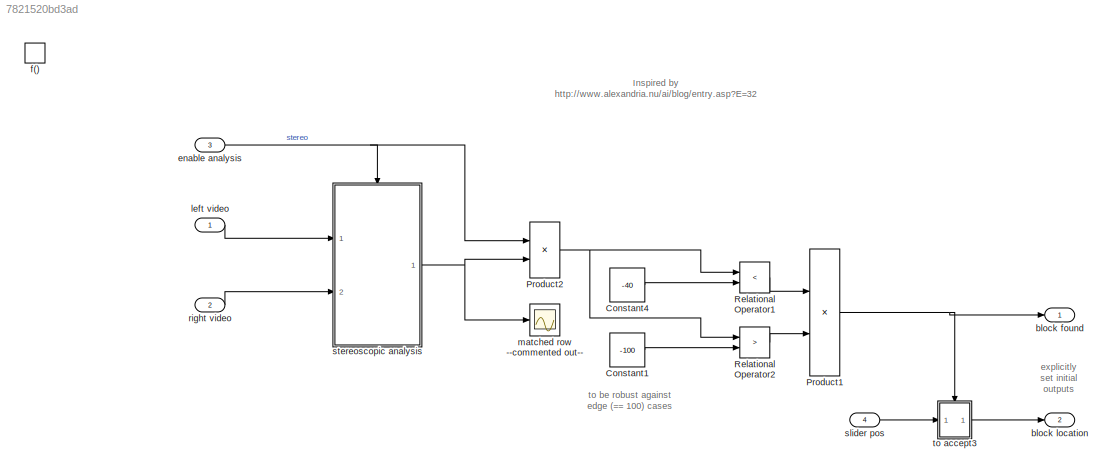
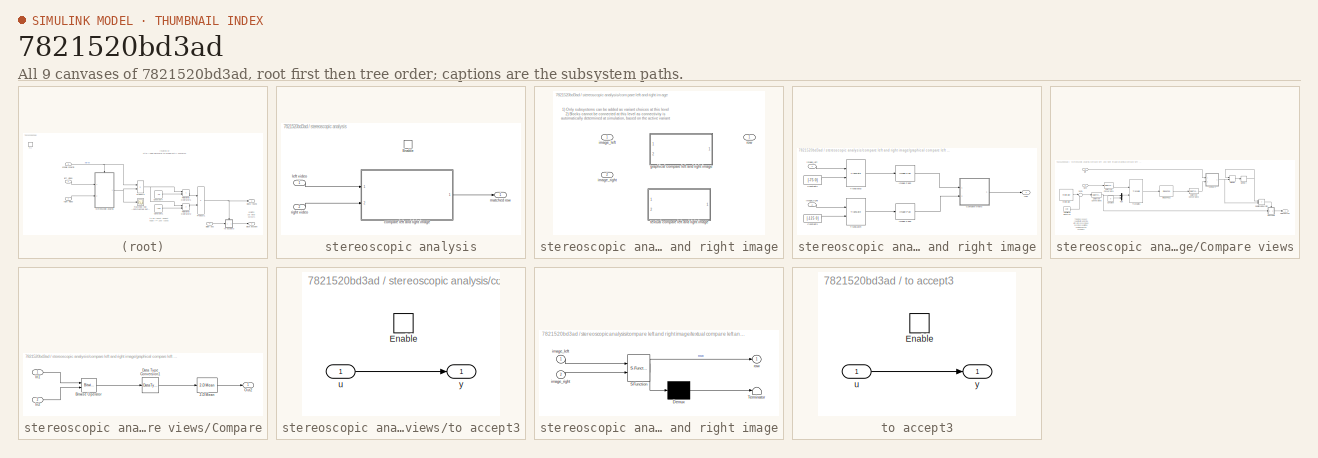
[diagram: thumbnail index - all 9 canvases of the model, root first then tree order]
MODEL slx_7821520bd3ad
KIND model
BLOCK [Constant] Constant1
  OutDataTypeStr = int16
  Value = -100
BLOCK [Constant] Constant4
  OutDataTypeStr = int16
  Value = -40
BLOCK [Product] Product1
  InputSameDT = off
  OutDataTypeStr = uint16
  Ports = [2, 1]
  SaturateOnIntegerOverflow = off
BLOCK [Product] Product2
  InputSameDT = off
  OutDataTypeStr = Inherit: Inherit via internal rule
  Ports = [2, 1]
  SaturateOnIntegerOverflow = off
BLOCK [RelationalOperator] Relational Operator1
  InputSameDT = off
  Operator = <
  OutDataTypeStr = fixdt(0,16)
  Ports = [2, 1]
BLOCK [RelationalOperator] Relational Operator2
  InputSameDT = off
  Operator = >
  OutDataTypeStr = fixdt(0,16)
  Ports = [2, 1]
BLOCK [Outport] block found
  IconDisplay = Port number
  InitialOutput = 0
  OutDataTypeStr = uint16
  PortDimensions = 1
  SamplingMode = Sample based
  SignalType = real
BLOCK [Outport] block location
  IconDisplay = Port number
  InitialOutput = 0
  OutDataTypeStr = double
  Port = 2
  PortDimensions = 1
  SamplingMode = Sample based
  SignalType = real
BLOCK [Inport] enable analysis
  IconDisplay = Port number
  OutDataTypeStr = boolean
  Port = 3
  PortDimensions = 1
  SamplingMode = Sample based
  SignalType = real
BLOCK [TriggerPort] f()
  PortDimensions = 1
  Ports = []
  SampleTime = 0.1
  StatesWhenEnabling = held
  TriggerType = function-call
BLOCK [Inport] left video
  IconDisplay = Port number
  OutDataTypeStr = uint8
  PortDimensions = [400 240 3]
  SamplingMode = Sample based
  SignalType = real
BLOCK [Scope] matched row --commented out--
  Commented = on
  DataFormat = StructureWithTime
  Floating = off
  NumInputPorts = 1
  Ports = [1]
  SampleTime = 0
  ShowLegends = off
BLOCK [Inport] right video
  IconDisplay = Port number
  OutDataTypeStr = uint8
  Port = 2
  PortDimensions = [400 240 3]
  SamplingMode = Sample based
  SignalType = real
BLOCK [Inport] slider pos
  IconDisplay = Port number
  OutDataTypeStr = double
  Port = 4
  PortDimensions = 1
  SamplingMode = Sample based
  SignalType = real
BLOCK [SubSystem] stereoscopic analysis
  FunctionWithSeparateData = off
  MaskHideContents = off
  MinAlgLoopOccurrences = off
  Opaque = off
  Ports = [2, 1, 1]
  PropExecContextOutsideSubsystem = off
  RTWSystemCode = Auto
  RequestExecContextInheritance = off
BLOCK [EnablePort] stereoscopic analysis/Enable
  Ports = []
BLOCK [SubSystem] stereoscopic analysis/compare left and right image
  FunctionWithSeparateData = off
  MaskHideContents = off
  MinAlgLoopOccurrences = off
  Opaque = off
  OverrideUsingVariant = textual
  Ports = [2, 1]
  PropExecContextOutsideSubsystem = off
  RTWSystemCode = Auto
  RequestExecContextInheritance = off
  Variant = on
BLOCK [SubSystem] stereoscopic analysis/compare left and right image/graphical compare left and right image
  FunctionWithSeparateData = off
  MaskHideContents = off
  MinAlgLoopOccurrences = off
  Opaque = off
  Ports = [2, 1]
  PropExecContextOutsideSubsystem = off
  RTWSystemCode = Auto
  RequestExecContextInheritance = off
  VariantObject = graphical
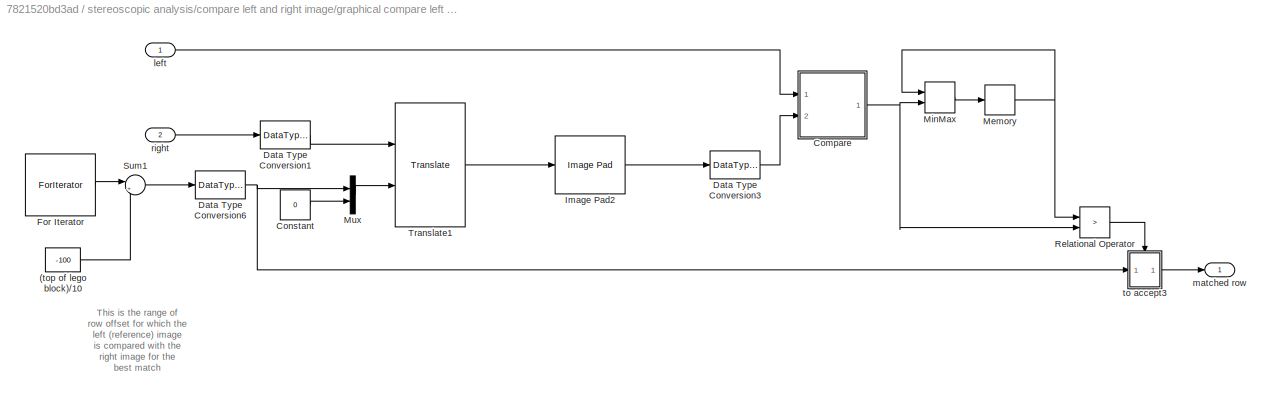
BLOCK [SubSystem] stereoscopic analysis/compare left and right image/graphical compare left and right image/Compare views
  FunctionWithSeparateData = off
  MaskHideContents = off
  MinAlgLoopOccurrences = off
  Opaque = off
  Ports = [2, 1]
  PropExecContextOutsideSubsystem = off
  RTWSystemCode = Auto
  RequestExecContextInheritance = off
  TreatAsAtomicUnit = on
BLOCK [Constant] stereoscopic analysis/compare left and right image/graphical compare left and right image/Compare views/(top of lego block)//10
  Value = -100
BLOCK [SubSystem] stereoscopic analysis/compare left and right image/graphical compare left and right image/Compare views/Compare
  FunctionWithSeparateData = off
  MaskHideContents = off
  MinAlgLoopOccurrences = off
  Opaque = off
  Ports = [2, 1]
  PropExecContextOutsideSubsystem = off
  RTWSystemCode = Auto
  RequestExecContextInheritance = off
BLOCK [Reference] stereoscopic analysis/compare left and right image/graphical compare left and right image/Compare views/Compare/2-D Mean  REF=visionstatistics/2-D Mean
  InputProcessing = Elements as channels (sample based)
  LockScale = off
  Ports = [1, 1]
  SourceBlock = visionstatistics/2-D Mean
  SourceType = 2-D Mean
  UserDataPersistent = on
  accumDataTypeStr = fixdt([],32,0)
  accumFracLength = 0
  accumLastDataTypeStr = fixdt([],32,0)
  accumMode = Binary point scaling
  accumWordLength = 32
  additionalParams = off
  allowOverrides = on
  dimension = 1
  directionMode = Entire input
  outputDataTypeStr = Inherit: Same as accumulator
  outputFracLength = 30
  outputLastDataTypeStr = Inherit: Same as accumulator
  outputMax = []
  outputMin = []
  outputMode = Same as accumulator
  outputWordLength = 32
  overflowMode = off
  reset_popup = None
  roiEnable = off
  roiFlag = off
  roiOutput = Individual statistics for each ROI
  roiPortion = Entire ROI
  roiType = Rectangles
  roundingMode = Floor
  run = off
  treatSBRowAsCol = on
BLOCK [Reference] stereoscopic analysis/compare left and right image/graphical compare left and right image/Compare views/Compare/Bitwise Operator  REF=simulink/Logic and Bit
Operations/Bitwise
Operator
  BitMask = bin2dec('11011001')
  BitMaskRealWorld = Stored Integer
  NumInputPorts = 2
  Ports = [2, 1]
  SourceBlock = simulink/Logic and Bit\nOperations/Bitwise\nOperator
  SourceType = Bitwise Operator
  UseBitMask = off
  logicop = XOR
BLOCK [DataTypeConversion] stereoscopic analysis/compare left and right image/graphical compare left and right image/Compare views/Compare/Data Type Conversion1
  OutDataTypeStr = double
BLOCK [Inport] stereoscopic analysis/compare left and right image/graphical compare left and right image/Compare views/Compare/In1
  IconDisplay = Port number
BLOCK [Inport] stereoscopic analysis/compare left and right image/graphical compare left and right image/Compare views/Compare/In2
  IconDisplay = Port number
  Port = 2
BLOCK [Outport] stereoscopic analysis/compare left and right image/graphical compare left and right image/Compare views/Compare/Out2
  IconDisplay = Port number
BLOCK [Constant] stereoscopic analysis/compare left and right image/graphical compare left and right image/Compare views/Constant
  OutDataTypeStr = double
  Value = 0
BLOCK [DataTypeConversion] stereoscopic analysis/compare left and right image/graphical compare left and right image/Compare views/Data Type Conversion1
  OutDataTypeStr = double
  RndMeth = Floor
  SaturateOnIntegerOverflow = off
BLOCK [DataTypeConversion] stereoscopic analysis/compare left and right image/graphical compare left and right image/Compare views/Data Type Conversion3
  OutDataTypeStr = uint8
  RndMeth = Floor
  SaturateOnIntegerOverflow = off
BLOCK [DataTypeConversion] stereoscopic analysis/compare left and right image/graphical compare left and right image/Compare views/Data Type Conversion6
  OutDataTypeStr = double
  RndMeth = Floor
  SaturateOnIntegerOverflow = off
BLOCK [ForIterator] stereoscopic analysis/compare left and right image/graphical compare left and right image/Compare views/For Iterator
  IterationLimit = 100
  Ports = [0, 1]
  ResetStates = reset
BLOCK [Reference] stereoscopic analysis/compare left and right image/graphical compare left and right image/Compare views/Image Pad2  REF=visionutilities/Image Pad
  Ports = [1, 1]
  SourceBlock = visionutilities/Image Pad
  SourceType = Image Pad
  colDirection = Bottom
  colSize = [60 80]
  method = Constant
  outColSize = 120
  outColsMode = User-specified
  outRowSize = 150
  outRowsMode = User-specified
  rowDirection = No padding
  rowSize = 2
  spec = Output size
  trunc_flag = None
  valSrc = Specify via dialog
  value = 0
BLOCK [Memory] stereoscopic analysis/compare left and right image/graphical compare left and right image/Compare views/Memory
  InheritSampleTime = on
  X0 = 1e5
BLOCK [MinMax] stereoscopic analysis/compare left and right image/graphical compare left and right image/Compare views/MinMax
  InputSameDT = off
  Inputs = 2
  Ports = [2, 1]
  SaturateOnIntegerOverflow = off
BLOCK [Mux] stereoscopic analysis/compare left and right image/graphical compare left and right image/Compare views/Mux
  DisplayOption = bar
  Inputs = 2
  Ports = [2, 1]
BLOCK [RelationalOperator] stereoscopic analysis/compare left and right image/graphical compare left and right image/Compare views/Relational Operator
  InputSameDT = off
  Operator = >
  OutDataTypeStr = boolean
  Ports = [2, 1]
BLOCK [Sum] stereoscopic analysis/compare left and right image/graphical compare left and right image/Compare views/Sum1
  IconShape = round
  InputSameDT = off
  Inputs = |++
  OutDataTypeStr = Inherit: Inherit via internal rule
  Ports = [2, 1]
  SaturateOnIntegerOverflow = off
BLOCK [Reference] stereoscopic analysis/compare left and right image/graphical compare left and right image/Compare views/Translate1  REF=visiongeotforms/Translate
  LockScale = off
  Ports = [2, 1]
  SourceBlock = visiongeotforms/Translate
  SourceType = Translate
  accumFracLength = 10
  accumMode = Same as product output
  accumWordLength = 32
  fillVal = 0
  firstCoeffFracLength = 6
  firstCoeffMode = Same word length as input
  firstCoeffWordLength = 16
  interpMethod = Bilinear
  maxOffset = [8 10]
  outSizeT = Same as input image
  outputFracLength = 10
  outputMode = Same as first input
  outputWordLength = 32
  overflowMode = on
  prodOutputFracLength = 10
  prodOutputMode = Binary point scaling
  prodOutputWordLength = 32
  roundingMode = Nearest
  src_trans = Input port
  translation = [1.5  2.3]
BLOCK [Inport] stereoscopic analysis/compare left and right image/graphical compare left and right image/Compare views/left
  IconDisplay = Port number
BLOCK [Outport] stereoscopic analysis/compare left and right image/graphical compare left and right image/Compare views/matched row
  IconDisplay = Port number
  InitialOutput = 0
  SourceOfInitialOutputValue = Input signal
BLOCK [Inport] stereoscopic analysis/compare left and right image/graphical compare left and right image/Compare views/right
  IconDisplay = Port number
  Port = 2
BLOCK [SubSystem] stereoscopic analysis/compare left and right image/graphical compare left and right image/Compare views/to accept3
  FunctionWithSeparateData = off
  MaskHideContents = off
  MinAlgLoopOccurrences = off
  Opaque = off
  Ports = [1, 1, 1]
  PropExecContextOutsideSubsystem = off
  RTWSystemCode = Auto
  RequestExecContextInheritance = off
BLOCK [EnablePort] stereoscopic analysis/compare left and right image/graphical compare left and right image/Compare views/to accept3/Enable
  Ports = []
BLOCK [Inport] stereoscopic analysis/compare left and right image/graphical compare left and right image/Compare views/to accept3/u
  IconDisplay = Port number
BLOCK [Outport] stereoscopic analysis/compare left and right image/graphical compare left and right image/Compare views/to accept3/y
  IconDisplay = Port number
  InitialOutput = yini
BLOCK [Constant] stereoscopic analysis/compare left and right image/graphical compare left and right image/Constant2
  OutDataTypeStr = int16
  Value = [-75 0]
BLOCK [Constant] stereoscopic analysis/compare left and right image/graphical compare left and right image/Constant3
  OutDataTypeStr = int16
  Value = [-125 0]
BLOCK [Reference] stereoscopic analysis/compare left and right image/graphical compare left and right image/Image Pad2  REF=visionutilities/Image Pad
  Ports = [1, 1]
  SourceBlock = visionutilities/Image Pad
  SourceType = Image Pad
  colDirection = Bottom
  colSize = [60 80]
  method = Constant
  outColSize = 120
  outColsMode = User-specified
  outRowSize = 150
  outRowsMode = User-specified
  rowDirection = Right
  rowSize = 2
  spec = Output size
  trunc_flag = None
  valSrc = Specify via dialog
  value = 0
BLOCK [Reference] stereoscopic analysis/compare left and right image/graphical compare left and right image/Image Pad3  REF=visionutilities/Image Pad
  Ports = [1, 1]
  SourceBlock = visionutilities/Image Pad
  SourceType = Image Pad
  colDirection = Bottom
  colSize = [60 80]
  method = Constant
  outColSize = 120
  outColsMode = User-specified
  outRowSize = 250
  outRowsMode = User-specified
  rowDirection = Right
  rowSize = 2
  spec = Output size
  trunc_flag = None
  valSrc = Specify via dialog
  value = 0
BLOCK [Reference] stereoscopic analysis/compare left and right image/graphical compare left and right image/Translate3  REF=visiongeotforms/Translate
  LockScale = off
  Ports = [2, 1]
  SourceBlock = visiongeotforms/Translate
  SourceType = Translate
  accumFracLength = 10
  accumMode = Same as product output
  accumWordLength = 32
  fillVal = 0
  firstCoeffFracLength = 6
  firstCoeffMode = Same word length as input
  firstCoeffWordLength = 16
  interpMethod = Bilinear
  maxOffset = [8 10]
  outSizeT = Same as input image
  outputFracLength = 10
  outputMode = Same as first input
  outputWordLength = 32
  overflowMode = on
  prodOutputFracLength = 10
  prodOutputMode = Binary point scaling
  prodOutputWordLength = 32
  roundingMode = Nearest
  src_trans = Input port
  translation = [1.5  2.3]
BLOCK [Reference] stereoscopic analysis/compare left and right image/graphical compare left and right image/Translate4  REF=visiongeotforms/Translate
  LockScale = off
  Ports = [2, 1]
  SourceBlock = visiongeotforms/Translate
  SourceType = Translate
  accumFracLength = 10
  accumMode = Same as product output
  accumWordLength = 32
  fillVal = 0
  firstCoeffFracLength = 6
  firstCoeffMode = Same word length as input
  firstCoeffWordLength = 16
  interpMethod = Bilinear
  maxOffset = [8 10]
  outSizeT = Same as input image
  outputFracLength = 10
  outputMode = Same as first input
  outputWordLength = 32
  overflowMode = on
  prodOutputFracLength = 10
  prodOutputMode = Binary point scaling
  prodOutputWordLength = 32
  roundingMode = Nearest
  src_trans = Input port
  translation = [1.5  2.3]
BLOCK [Inport] stereoscopic analysis/compare left and right image/graphical compare left and right image/image_left
  IconDisplay = Port number
BLOCK [Inport] stereoscopic analysis/compare left and right image/graphical compare left and right image/image_right
  IconDisplay = Port number
  Port = 2
BLOCK [Outport] stereoscopic analysis/compare left and right image/graphical compare left and right image/row
  IconDisplay = Port number
BLOCK [Inport] stereoscopic analysis/compare left and right image/image_left
  IconDisplay = Port number
BLOCK [Inport] stereoscopic analysis/compare left and right image/image_right
  IconDisplay = Port number
  Port = 2
BLOCK [Outport] stereoscopic analysis/compare left and right image/row
  IconDisplay = Port number
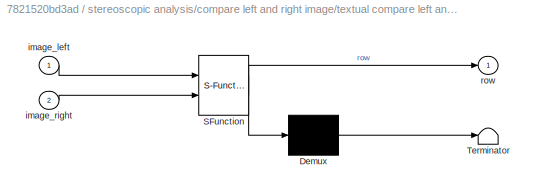
BLOCK [SubSystem] stereoscopic analysis/compare left and right image/textual compare left and right image
  ErrorFcn = Stateflow.Translate.translate
  FunctionWithSeparateData = off
  MaskHideContents = off
  MinAlgLoopOccurrences = off
  Opaque = off
  PermitHierarchicalResolution = ExplicitOnly
  Ports = [2, 1]
  PropExecContextOutsideSubsystem = off
  RTWSystemCode = Auto
  RequestExecContextInheritance = off
  SFBlockType = MATLAB Function
  TreatAsAtomicUnit = on
  VariantObject = textual
BLOCK [Demux] stereoscopic analysis/compare left and right image/textual compare left and right image/ Demux 
  Outputs = 1
  Ports = [1, 1]
BLOCK [S-Function] stereoscopic analysis/compare left and right image/textual compare left and right image/ SFunction 
  EnableBusSupport = on
  FunctionName = sf_sfun
  PortCounts = [2 2]
  Ports = [2, 2]
  Tag = Stateflow S-Function cps_stereo_analysis_v2 2
BLOCK [Terminator] stereoscopic analysis/compare left and right image/textual compare left and right image/ Terminator 
BLOCK [Inport] stereoscopic analysis/compare left and right image/textual compare left and right image/image_left
  IconDisplay = Port number
BLOCK [Inport] stereoscopic analysis/compare left and right image/textual compare left and right image/image_right
  IconDisplay = Port number
  Port = 2
BLOCK [Outport] stereoscopic analysis/compare left and right image/textual compare left and right image/row
  IconDisplay = Port number
BLOCK [Inport] stereoscopic analysis/left video
  IconDisplay = Port number
BLOCK [Outport] stereoscopic analysis/matched row
  IconDisplay = Port number
  InitialOutput = 0
BLOCK [Inport] stereoscopic analysis/right video
  IconDisplay = Port number
  Port = 2
BLOCK [SubSystem] to accept3
  FunctionWithSeparateData = off
  MaskHideContents = off
  MinAlgLoopOccurrences = off
  Opaque = off
  Ports = [1, 1, 1]
  PropExecContextOutsideSubsystem = off
  RTWSystemCode = Auto
  RequestExecContextInheritance = off
BLOCK [EnablePort] to accept3/Enable
  Ports = []
BLOCK [Inport] to accept3/u
  IconDisplay = Port number
BLOCK [Outport] to accept3/y
  IconDisplay = Port number
  InitialOutput = yini
ANNOTATION (root): Inspired by http://www.alexandria.nu/ai/blog/entry.asp?E=32
ANNOTATION (root): explicitly set initial outputs
ANNOTATION (root): to be robust against edge (== 100) cases
ANNOTATION stereoscopic analysis/compare left and right image: 1) Only subsystems can be added as variant choices at this level 2) Blocks cannot be connected at this level as connectivity is automatically determined at simulation, based on the active variant
ANNOTATION stereoscopic analysis/compare left and right image/graphical compare left and right image/Compare views: This is the range of row offset for which the left (reference) image is compared with the right image for the best match
LINE Constant1:1 -> Relational Operator2:2
LINE Constant4:1 -> Relational Operator1:2
NET Product1:1 -> block found:1, to accept3:enable
NET Product2:1 -> Relational Operator1:1, Relational Operator2:1
LINE Relational Operator1:1 -> Product1:1
LINE Relational Operator2:1 -> Product1:2
NET enable analysis:1 -> Product2:1, stereoscopic analysis:enable
LINE left video:1 -> stereoscopic analysis:1
LINE right video:1 -> stereoscopic analysis:2
LINE slider pos:1 -> to accept3:1
LINE stereoscopic analysis/compare left and right image/graphical compare left and right image/Compare views/(top of lego block)//10:1 -> stereoscopic analysis/compare left and right image/graphical compare left and right image/Compare views/Sum1:2
LINE stereoscopic analysis/compare left and right image/graphical compare left and right image/Compare views/Compare/2-D Mean:1 -> stereoscopic analysis/compare left and right image/graphical compare left and right image/Compare views/Compare/Out2:1
LINE stereoscopic analysis/compare left and right image/graphical compare left and right image/Compare views/Compare/Bitwise Operator:1 -> stereoscopic analysis/compare left and right image/graphical compare left and right image/Compare views/Compare/Data Type Conversion1:1
LINE stereoscopic analysis/compare left and right image/graphical compare left and right image/Compare views/Compare/Data Type Conversion1:1 -> stereoscopic analysis/compare left and right image/graphical compare left and right image/Compare views/Compare/2-D Mean:1
LINE stereoscopic analysis/compare left and right image/graphical compare left and right image/Compare views/Compare/In1:1 -> stereoscopic analysis/compare left and right image/graphical compare left and right image/Compare views/Compare/Bitwise Operator:1
LINE stereoscopic analysis/compare left and right image/graphical compare left and right image/Compare views/Compare/In2:1 -> stereoscopic analysis/compare left and right image/graphical compare left and right image/Compare views/Compare/Bitwise Operator:2
NET stereoscopic analysis/compare left and right image/graphical compare left and right image/Compare views/Compare:1 -> stereoscopic analysis/compare left and right image/graphical compare left and right image/Compare views/MinMax:2, stereoscopic analysis/compare left and right image/graphical compare left and right image/Compare views/Relational Operator:2
LINE stereoscopic analysis/compare left and right image/graphical compare left and right image/Compare views/Constant:1 -> stereoscopic analysis/compare left and right image/graphical compare left and right image/Compare views/Mux:2
LINE stereoscopic analysis/compare left and right image/graphical compare left and right image/Compare views/Data Type Conversion1:1 -> stereoscopic analysis/compare left and right image/graphical compare left and right image/Compare views/Translate1:1
LINE stereoscopic analysis/compare left and right image/graphical compare left and right image/Compare views/Data Type Conversion3:1 -> stereoscopic analysis/compare left and right image/graphical compare left and right image/Compare views/Compare:2
NET stereoscopic analysis/compare left and right image/graphical compare left and right image/Compare views/Data Type Conversion6:1 -> stereoscopic analysis/compare left and right image/graphical compare left and right image/Compare views/Mux:1, stereoscopic analysis/compare left and right image/graphical compare left and right image/Compare views/to accept3:1
LINE stereoscopic analysis/compare left and right image/graphical compare left and right image/Compare views/For Iterator:1 -> stereoscopic analysis/compare left and right image/graphical compare left and right image/Compare views/Sum1:1
LINE stereoscopic analysis/compare left and right image/graphical compare left and right image/Compare views/Image Pad2:1 -> stereoscopic analysis/compare left and right image/graphical compare left and right image/Compare views/Data Type Conversion3:1
NET stereoscopic analysis/compare left and right image/graphical compare left and right image/Compare views/Memory:1 -> stereoscopic analysis/compare left and right image/graphical compare left and right image/Compare views/MinMax:1, stereoscopic analysis/compare left and right image/graphical compare left and right image/Compare views/Relational Operator:1
LINE stereoscopic analysis/compare left and right image/graphical compare left and right image/Compare views/MinMax:1 -> stereoscopic analysis/compare left and right image/graphical compare left and right image/Compare views/Memory:1
LINE stereoscopic analysis/compare left and right image/graphical compare left and right image/Compare views/Mux:1 -> stereoscopic analysis/compare left and right image/graphical compare left and right image/Compare views/Translate1:2
LINE stereoscopic analysis/compare left and right image/graphical compare left and right image/Compare views/Relational Operator:1 -> stereoscopic analysis/compare left and right image/graphical compare left and right image/Compare views/to accept3:enable
LINE stereoscopic analysis/compare left and right image/graphical compare left and right image/Compare views/Sum1:1 -> stereoscopic analysis/compare left and right image/graphical compare left and right image/Compare views/Data Type Conversion6:1
LINE stereoscopic analysis/compare left and right image/graphical compare left and right image/Compare views/Translate1:1 -> stereoscopic analysis/compare left and right image/graphical compare left and right image/Compare views/Image Pad2:1
LINE stereoscopic analysis/compare left and right image/graphical compare left and right image/Compare views/left:1 -> stereoscopic analysis/compare left and right image/graphical compare left and right image/Compare views/Compare:1
LINE stereoscopic analysis/compare left and right image/graphical compare left and right image/Compare views/right:1 -> stereoscopic analysis/compare left and right image/graphical compare left and right image/Compare views/Data Type Conversion1:1
LINE stereoscopic analysis/compare left and right image/graphical compare left and right image/Compare views/to accept3/u:1 -> stereoscopic analysis/compare left and right image/graphical compare left and right image/Compare views/to accept3/y:1
LINE stereoscopic analysis/compare left and right image/graphical compare left and right image/Compare views/to accept3:1 -> stereoscopic analysis/compare left and right image/graphical compare left and right image/Compare views/matched row:1
LINE stereoscopic analysis/compare left and right image/graphical compare left and right image/Compare views:1 -> stereoscopic analysis/compare left and right image/graphical compare left and right image/row:1
LINE stereoscopic analysis/compare left and right image/graphical compare left and right image/Constant2:1 -> stereoscopic analysis/compare left and right image/graphical compare left and right image/Translate3:2
LINE stereoscopic analysis/compare left and right image/graphical compare left and right image/Constant3:1 -> stereoscopic analysis/compare left and right image/graphical compare left and right image/Translate4:2
LINE stereoscopic analysis/compare left and right image/graphical compare left and right image/Image Pad2:1 -> stereoscopic analysis/compare left and right image/graphical compare left and right image/Compare views:1
LINE stereoscopic analysis/compare left and right image/graphical compare left and right image/Image Pad3:1 -> stereoscopic analysis/compare left and right image/graphical compare left and right image/Compare views:2
LINE stereoscopic analysis/compare left and right image/graphical compare left and right image/Translate3:1 -> stereoscopic analysis/compare left and right image/graphical compare left and right image/Image Pad2:1
LINE stereoscopic analysis/compare left and right image/graphical compare left and right image/Translate4:1 -> stereoscopic analysis/compare left and right image/graphical compare left and right image/Image Pad3:1
LINE stereoscopic analysis/compare left and right image/graphical compare left and right image/image_left:1 -> stereoscopic analysis/compare left and right image/graphical compare left and right image/Translate3:1
LINE stereoscopic analysis/compare left and right image/graphical compare left and right image/image_right:1 -> stereoscopic analysis/compare left and right image/graphical compare left and right image/Translate4:1
LINE stereoscopic analysis/compare left and right image:1 -> stereoscopic analysis/matched row:1
LINE stereoscopic analysis/left video:1 -> stereoscopic analysis/compare left and right image:1
LINE stereoscopic analysis/right video:1 -> stereoscopic analysis/compare left and right image:2
NET stereoscopic analysis:1 -> Product2:2, matched row --commented out--:1
LINE to accept3/u:1 -> to accept3/y:1
LINE to accept3:1 -> block location:1
note: NET lines group one-source signal fan-out (src -> all destinations, sorted); 1:1 wires keep LINE
